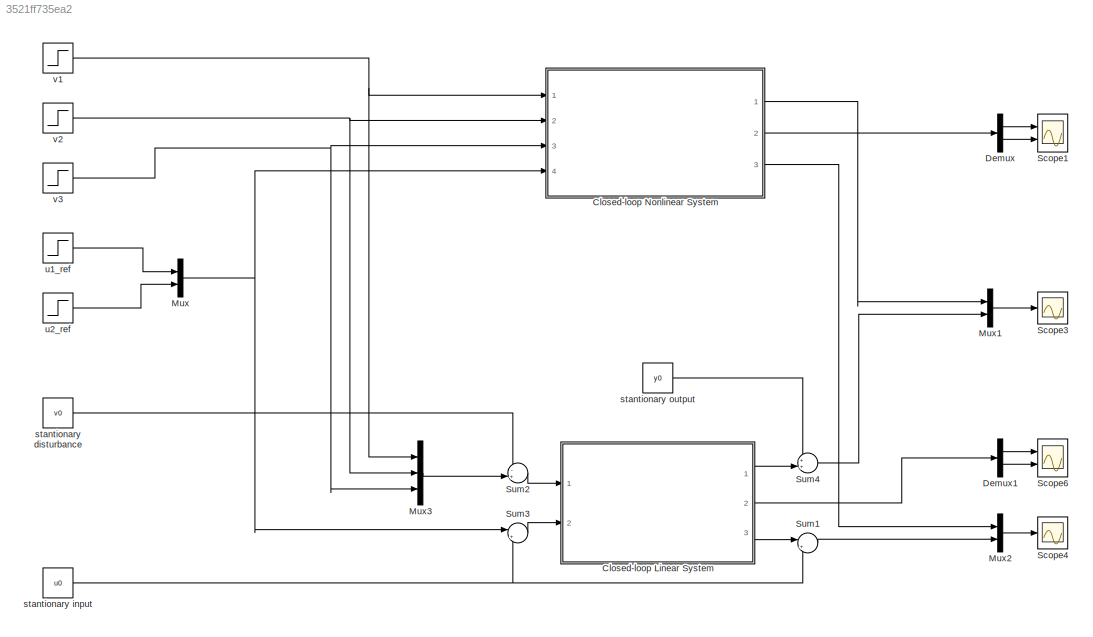
MODEL slx_3521ff735ea2
KIND model
CONFIG AbsTol = auto
CONFIG EnableMultiTasking = on
CONFIG FixedStep = STEP_SIZE
CONFIG MaxStep = auto
CONFIG MinStep = auto
CONFIG RelTol = 1e-3
CONFIG SampleTimeConstraint = Unconstrained
CONFIG Solver = ode4
CONFIG SolverName = ode4
CONFIG StartTime = 0.0
CONFIG StopTime = SIM_TIME
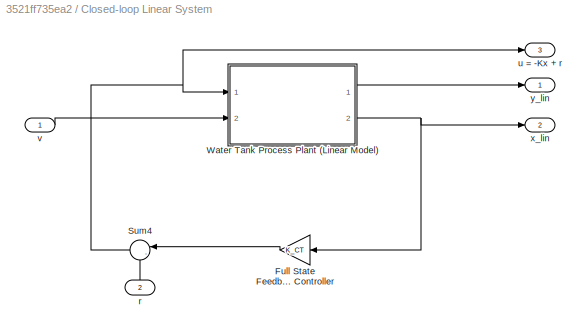
BLOCK [SubSystem] Closed-loop Linear System
  Ports = [2, 3]
  RequestExecContextInheritance = off
  Variant = off
BLOCK [Gain] Closed-loop Linear System/Full State Feedback Controller
  Gain = K_CT
  Multiplication = Matrix(K*u) (u vector)
  OutDataTypeStr = Inherit: Inherit via internal rule
  ParamDataTypeStr = Inherit: Inherit via internal rule
  SaturateOnIntegerOverflow = off
BLOCK [Sum] Closed-loop Linear System/Sum4
  IconShape = round
  InputSameDT = off
  Inputs = |-+
  OutDataTypeStr = Inherit: Inherit via internal rule
  Ports = [2, 1]
  SaturateOnIntegerOverflow = off
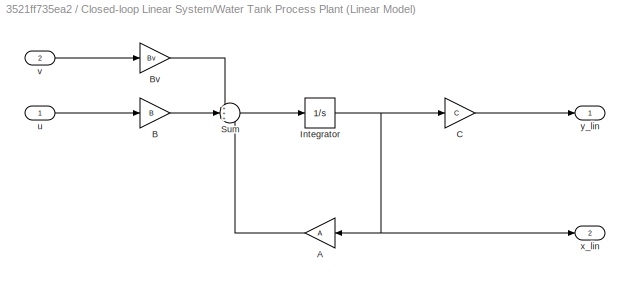
BLOCK [SubSystem] Closed-loop Linear System/Water Tank Process Plant (Linear Model)
  Ports = [2, 2]
  RequestExecContextInheritance = off
  Variant = off
BLOCK [Gain] Closed-loop Linear System/Water Tank Process Plant (Linear Model)/A
  Gain = A
  Multiplication = Matrix(K*u) (u vector)
  OutDataTypeStr = Inherit: Inherit via internal rule
  ParamDataTypeStr = Inherit: Inherit via internal rule
  SaturateOnIntegerOverflow = off
BLOCK [Gain] Closed-loop Linear System/Water Tank Process Plant (Linear Model)/B
  Gain = B
  Multiplication = Matrix(K*u) (u vector)
  OutDataTypeStr = Inherit: Inherit via internal rule
  ParamDataTypeStr = Inherit: Inherit via internal rule
  SaturateOnIntegerOverflow = off
BLOCK [Gain] Closed-loop Linear System/Water Tank Process Plant (Linear Model)/Bv
  Gain = Bv
  Multiplication = Matrix(K*u) (u vector)
  OutDataTypeStr = Inherit: Inherit via internal rule
  ParamDataTypeStr = Inherit: Inherit via internal rule
  SaturateOnIntegerOverflow = off
BLOCK [Gain] Closed-loop Linear System/Water Tank Process Plant (Linear Model)/C
  Gain = C
  Multiplication = Matrix(K*u) (u vector)
  OutDataTypeStr = Inherit: Inherit via internal rule
  ParamDataTypeStr = Inherit: Inherit via internal rule
  SaturateOnIntegerOverflow = off
BLOCK [Integrator] Closed-loop Linear System/Water Tank Process Plant (Linear Model)/Integrator
  InitialCondition = x0_lin
  Ports = [1, 1]
BLOCK [Sum] Closed-loop Linear System/Water Tank Process Plant (Linear Model)/Sum
  IconShape = round
  InputSameDT = off
  Inputs = +++
  OutDataTypeStr = Inherit: Inherit via internal rule
  Ports = [3, 1]
  SaturateOnIntegerOverflow = off
BLOCK [Inport] Closed-loop Linear System/Water Tank Process Plant (Linear Model)/u
  IconDisplay = Port number
BLOCK [Inport] Closed-loop Linear System/Water Tank Process Plant (Linear Model)/v
  IconDisplay = Port number
  Port = 2
BLOCK [Outport] Closed-loop Linear System/Water Tank Process Plant (Linear Model)/x_lin
  IconDisplay = Port number
  Port = 2
BLOCK [Outport] Closed-loop Linear System/Water Tank Process Plant (Linear Model)/y_lin
  IconDisplay = Port number
BLOCK [Inport] Closed-loop Linear System/r
  IconDisplay = Port number
  Port = 2
BLOCK [Outport] Closed-loop Linear System/u = -Kx + r
  IconDisplay = Port number
  Port = 3
BLOCK [Inport] Closed-loop Linear System/v
  IconDisplay = Port number
BLOCK [Outport] Closed-loop Linear System/x_lin
  IconDisplay = Port number
  Port = 2
BLOCK [Outport] Closed-loop Linear System/y_lin
  IconDisplay = Port number
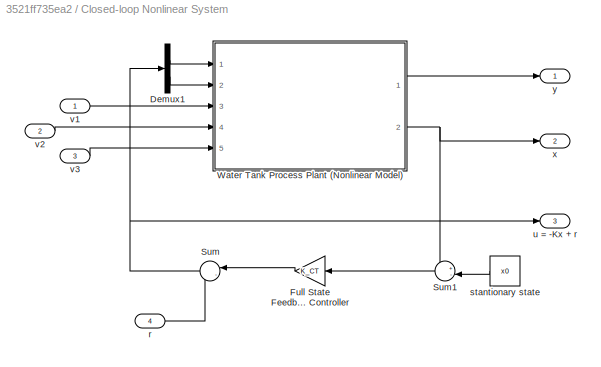
BLOCK [SubSystem] Closed-loop Nonlinear System
  Ports = [4, 3]
  RequestExecContextInheritance = off
  Variant = off
BLOCK [Demux] Closed-loop Nonlinear System/Demux1
  DisplayOption = bar
  Outputs = 2
  Ports = [1, 2]
BLOCK [Gain] Closed-loop Nonlinear System/Full State Feedback Controller
  Gain = K_CT
  Multiplication = Matrix(K*u) (u vector)
  OutDataTypeStr = Inherit: Inherit via internal rule
  ParamDataTypeStr = Inherit: Inherit via internal rule
  SaturateOnIntegerOverflow = off
BLOCK [Sum] Closed-loop Nonlinear System/Sum
  IconShape = round
  InputSameDT = off
  Inputs = |-+
  OutDataTypeStr = Inherit: Inherit via internal rule
  Ports = [2, 1]
  SaturateOnIntegerOverflow = off
BLOCK [Sum] Closed-loop Nonlinear System/Sum1
  IconShape = round
  InputSameDT = off
  Inputs = +-|
  OutDataTypeStr = Inherit: Inherit via internal rule
  Ports = [2, 1]
  SaturateOnIntegerOverflow = off
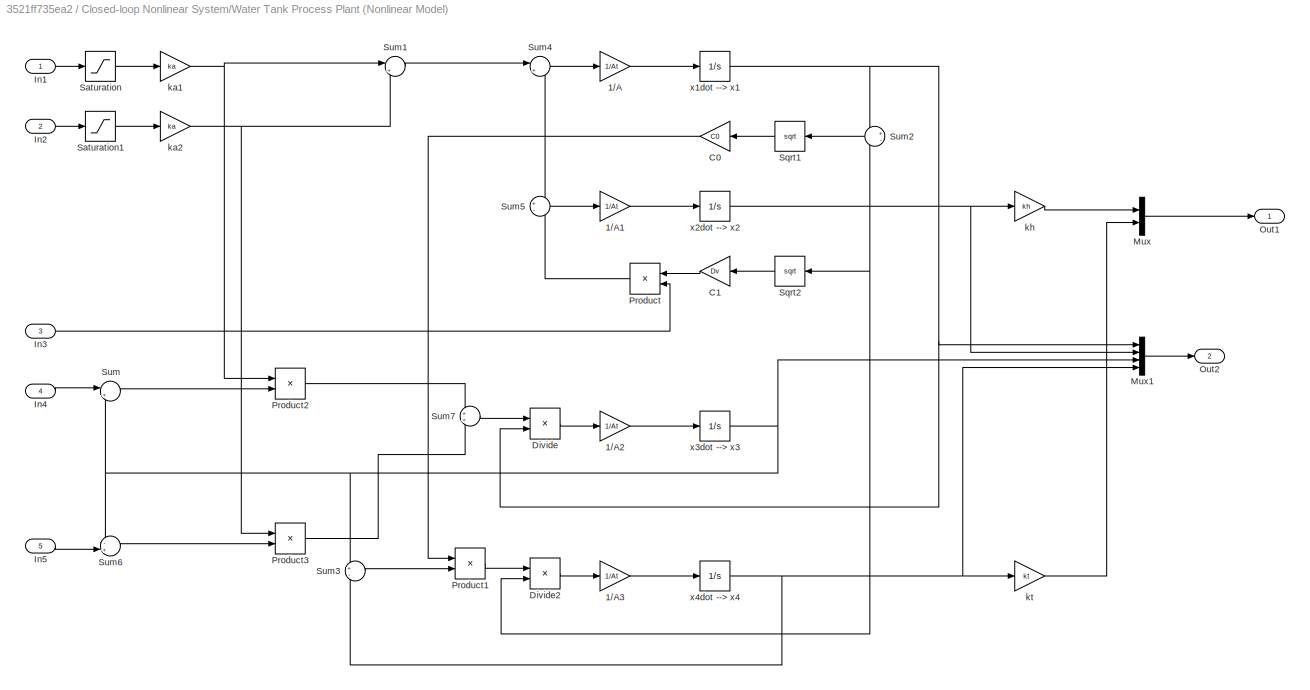
BLOCK [SubSystem] Closed-loop Nonlinear System/Water Tank Process Plant (Nonlinear Model)
  Ports = [5, 2]
  RequestExecContextInheritance = off
  Variant = off
BLOCK [Gain] Closed-loop Nonlinear System/Water Tank Process Plant (Nonlinear Model)/1//A
  Gain = 1/At
  OutDataTypeStr = Inherit: Inherit via internal rule
  ParamDataTypeStr = Inherit: Inherit via internal rule
  SaturateOnIntegerOverflow = off
BLOCK [Gain] Closed-loop Nonlinear System/Water Tank Process Plant (Nonlinear Model)/1//A1
  Gain = 1/At
  OutDataTypeStr = Inherit: Inherit via internal rule
  ParamDataTypeStr = Inherit: Inherit via internal rule
  SaturateOnIntegerOverflow = off
BLOCK [Gain] Closed-loop Nonlinear System/Water Tank Process Plant (Nonlinear Model)/1//A2
  Gain = 1/At
  OutDataTypeStr = Inherit: Inherit via internal rule
  ParamDataTypeStr = Inherit: Inherit via internal rule
  SaturateOnIntegerOverflow = off
BLOCK [Gain] Closed-loop Nonlinear System/Water Tank Process Plant (Nonlinear Model)/1//A3
  Gain = 1/At
  OutDataTypeStr = Inherit: Inherit via internal rule
  ParamDataTypeStr = Inherit: Inherit via internal rule
  SaturateOnIntegerOverflow = off
BLOCK [Gain] Closed-loop Nonlinear System/Water Tank Process Plant (Nonlinear Model)/C0
  Gain = C0
  OutDataTypeStr = Inherit: Inherit via internal rule
  ParamDataTypeStr = Inherit: Inherit via internal rule
  SaturateOnIntegerOverflow = off
BLOCK [Gain] Closed-loop Nonlinear System/Water Tank Process Plant (Nonlinear Model)/C1
  Gain = Dv
  OutDataTypeStr = Inherit: Inherit via internal rule
  ParamDataTypeStr = Inherit: Inherit via internal rule
  SaturateOnIntegerOverflow = off
BLOCK [Product] Closed-loop Nonlinear System/Water Tank Process Plant (Nonlinear Model)/Divide
  InputSameDT = off
  Inputs = */
  OutDataTypeStr = Inherit: Inherit via internal rule
  Ports = [2, 1]
  RndMeth = Floor
  SaturateOnIntegerOverflow = off
BLOCK [Product] Closed-loop Nonlinear System/Water Tank Process Plant (Nonlinear Model)/Divide2
  InputSameDT = off
  Inputs = */
  OutDataTypeStr = Inherit: Inherit via internal rule
  Ports = [2, 1]
  RndMeth = Floor
  SaturateOnIntegerOverflow = off
BLOCK [Inport] Closed-loop Nonlinear System/Water Tank Process Plant (Nonlinear Model)/In1
  IconDisplay = Port number
BLOCK [Inport] Closed-loop Nonlinear System/Water Tank Process Plant (Nonlinear Model)/In2
  IconDisplay = Port number
  Port = 2
BLOCK [Inport] Closed-loop Nonlinear System/Water Tank Process Plant (Nonlinear Model)/In3
  IconDisplay = Port number
  Port = 3
BLOCK [Inport] Closed-loop Nonlinear System/Water Tank Process Plant (Nonlinear Model)/In4
  IconDisplay = Port number
  Port = 4
BLOCK [Inport] Closed-loop Nonlinear System/Water Tank Process Plant (Nonlinear Model)/In5
  IconDisplay = Port number
  Port = 5
BLOCK [Mux] Closed-loop Nonlinear System/Water Tank Process Plant (Nonlinear Model)/Mux
  DisplayOption = bar
  Inputs = 2
  Ports = [2, 1]
BLOCK [Mux] Closed-loop Nonlinear System/Water Tank Process Plant (Nonlinear Model)/Mux1
  DisplayOption = bar
  Ports = [4, 1]
BLOCK [Outport] Closed-loop Nonlinear System/Water Tank Process Plant (Nonlinear Model)/Out1
  IconDisplay = Port number
BLOCK [Outport] Closed-loop Nonlinear System/Water Tank Process Plant (Nonlinear Model)/Out2
  IconDisplay = Port number
  Port = 2
BLOCK [Product] Closed-loop Nonlinear System/Water Tank Process Plant (Nonlinear Model)/Product
  InputSameDT = off
  OutDataTypeStr = Inherit: Inherit via internal rule
  Ports = [2, 1]
  RndMeth = Floor
  SaturateOnIntegerOverflow = off
BLOCK [Product] Closed-loop Nonlinear System/Water Tank Process Plant (Nonlinear Model)/Product1
  InputSameDT = off
  OutDataTypeStr = Inherit: Inherit via internal rule
  Ports = [2, 1]
  RndMeth = Floor
  SaturateOnIntegerOverflow = off
BLOCK [Product] Closed-loop Nonlinear System/Water Tank Process Plant (Nonlinear Model)/Product2
  InputSameDT = off
  OutDataTypeStr = Inherit: Inherit via internal rule
  Ports = [2, 1]
  RndMeth = Floor
  SaturateOnIntegerOverflow = off
BLOCK [Product] Closed-loop Nonlinear System/Water Tank Process Plant (Nonlinear Model)/Product3
  InputSameDT = off
  OutDataTypeStr = Inherit: Inherit via internal rule
  Ports = [2, 1]
  RndMeth = Floor
  SaturateOnIntegerOverflow = off
BLOCK [Saturate] Closed-loop Nonlinear System/Water Tank Process Plant (Nonlinear Model)/Saturation
  InputPortMap = u0
  LowerLimit = 0
  Ports = [1, 1]
  UpperLimit = 10
BLOCK [Saturate] Closed-loop Nonlinear System/Water Tank Process Plant (Nonlinear Model)/Saturation1
  InputPortMap = u0
  LowerLimit = 0
  Ports = [1, 1]
  UpperLimit = 10
BLOCK [Sqrt] Closed-loop Nonlinear System/Water Tank Process Plant (Nonlinear Model)/Sqrt1
BLOCK [Sqrt] Closed-loop Nonlinear System/Water Tank Process Plant (Nonlinear Model)/Sqrt2
BLOCK [Sum] Closed-loop Nonlinear System/Water Tank Process Plant (Nonlinear Model)/Sum
  IconShape = round
  InputSameDT = off
  Inputs = |+-
  OutDataTypeStr = Inherit: Inherit via internal rule
  Ports = [2, 1]
  SaturateOnIntegerOverflow = off
BLOCK [Sum] Closed-loop Nonlinear System/Water Tank Process Plant (Nonlinear Model)/Sum1
  IconShape = round
  InputSameDT = off
  Inputs = |++
  OutDataTypeStr = Inherit: Inherit via internal rule
  Ports = [2, 1]
  SaturateOnIntegerOverflow = off
BLOCK [Sum] Closed-loop Nonlinear System/Water Tank Process Plant (Nonlinear Model)/Sum2
  IconShape = round
  InputSameDT = off
  Inputs = +-
  OutDataTypeStr = Inherit: Inherit via internal rule
  Ports = [2, 1]
  SaturateOnIntegerOverflow = off
BLOCK [Sum] Closed-loop Nonlinear System/Water Tank Process Plant (Nonlinear Model)/Sum3
  IconShape = round
  InputSameDT = off
  Inputs = +-
  OutDataTypeStr = Inherit: Inherit via internal rule
  Ports = [2, 1]
  SaturateOnIntegerOverflow = off
BLOCK [Sum] Closed-loop Nonlinear System/Water Tank Process Plant (Nonlinear Model)/Sum4
  IconShape = round
  InputSameDT = off
  Inputs = |+-
  OutDataTypeStr = Inherit: Inherit via internal rule
  Ports = [2, 1]
  SaturateOnIntegerOverflow = off
BLOCK [Sum] Closed-loop Nonlinear System/Water Tank Process Plant (Nonlinear Model)/Sum5
  IconShape = round
  InputSameDT = off
  Inputs = +-
  OutDataTypeStr = Inherit: Inherit via internal rule
  Ports = [2, 1]
  SaturateOnIntegerOverflow = off
BLOCK [Sum] Closed-loop Nonlinear System/Water Tank Process Plant (Nonlinear Model)/Sum6
  IconShape = round
  InputSameDT = off
  Inputs = -+|
  OutDataTypeStr = Inherit: Inherit via internal rule
  Ports = [2, 1]
  SaturateOnIntegerOverflow = off
BLOCK [Sum] Closed-loop Nonlinear System/Water Tank Process Plant (Nonlinear Model)/Sum7
  IconShape = round
  InputSameDT = off
  OutDataTypeStr = Inherit: Inherit via internal rule
  Ports = [2, 1]
  SaturateOnIntegerOverflow = off
BLOCK [Gain] Closed-loop Nonlinear System/Water Tank Process Plant (Nonlinear Model)/ka1
  Gain = ka
  OutDataTypeStr = Inherit: Inherit via internal rule
  ParamDataTypeStr = Inherit: Inherit via internal rule
  SaturateOnIntegerOverflow = off
BLOCK [Gain] Closed-loop Nonlinear System/Water Tank Process Plant (Nonlinear Model)/ka2
  Gain = ka
  OutDataTypeStr = Inherit: Inherit via internal rule
  ParamDataTypeStr = Inherit: Inherit via internal rule
  SaturateOnIntegerOverflow = off
BLOCK [Gain] Closed-loop Nonlinear System/Water Tank Process Plant (Nonlinear Model)/kh
  Gain = kh
  OutDataTypeStr = Inherit: Inherit via internal rule
  ParamDataTypeStr = Inherit: Inherit via internal rule
  SaturateOnIntegerOverflow = off
BLOCK [Gain] Closed-loop Nonlinear System/Water Tank Process Plant (Nonlinear Model)/kt
  Gain = kt
  OutDataTypeStr = Inherit: Inherit via internal rule
  ParamDataTypeStr = Inherit: Inherit via internal rule
  SaturateOnIntegerOverflow = off
BLOCK [Integrator] Closed-loop Nonlinear System/Water Tank Process Plant (Nonlinear Model)/x1dot --> x1
  InitialCondition = x0(1)
  LimitOutput = on
  LowerSaturationLimit = 0
  Ports = [1, 1]
BLOCK [Integrator] Closed-loop Nonlinear System/Water Tank Process Plant (Nonlinear Model)/x2dot --> x2
  InitialCondition = x0(2)
  LimitOutput = on
  LowerSaturationLimit = 0
  Ports = [1, 1]
BLOCK [Integrator] Closed-loop Nonlinear System/Water Tank Process Plant (Nonlinear Model)/x3dot --> x3
  InitialCondition = x0(3)
  Ports = [1, 1]
BLOCK [Integrator] Closed-loop Nonlinear System/Water Tank Process Plant (Nonlinear Model)/x4dot --> x4
  InitialCondition = x0(4)
  Ports = [1, 1]
BLOCK [Inport] Closed-loop Nonlinear System/r
  IconDisplay = Port number
  Port = 4
BLOCK [Constant] Closed-loop Nonlinear System/stantionary state
  Value = x0
BLOCK [Outport] Closed-loop Nonlinear System/u = -Kx + r
  IconDisplay = Port number
  Port = 3
BLOCK [Inport] Closed-loop Nonlinear System/v1
  IconDisplay = Port number
BLOCK [Inport] Closed-loop Nonlinear System/v2
  IconDisplay = Port number
  Port = 2
BLOCK [Inport] Closed-loop Nonlinear System/v3
  IconDisplay = Port number
  Port = 3
BLOCK [Outport] Closed-loop Nonlinear System/x
  IconDisplay = Port number
  Port = 2
BLOCK [Outport] Closed-loop Nonlinear System/y
  IconDisplay = Port number
BLOCK [Demux] Demux
  DisplayOption = bar
  Outputs = 2
  Ports = [1, 2]
BLOCK [Demux] Demux1
  DisplayOption = bar
  Outputs = 2
  Ports = [1, 2]
BLOCK [Mux] Mux
  DisplayOption = bar
  Inputs = 2
  Ports = [2, 1]
BLOCK [Mux] Mux1
  DisplayOption = bar
  Inputs = 2
  Ports = [2, 1]
BLOCK [Mux] Mux2
  DisplayOption = bar
  Inputs = 2
  Ports = [2, 1]
BLOCK [Mux] Mux3
  DisplayOption = bar
  Inputs = 3
  Ports = [3, 1]
BLOCK [Scope] Scope1
  NumInputPorts = 2
  Ports = [2]
  ScopeSpecificationString = Simulink.scopes.TimeScopeBlockCfg('CurrentConfiguration', extmgr.ConfigurationSet(extmgr.Configuration('Core','General UI',true),extmgr.Configuration('Core','Source UI',true),extmgr.Configuration('Sources','WiredSimulink',true,'DataLoggingVariableName','ScopeData1','DataLoggingSaveFormat','StructureWithTime','DataLoggingDecimation','1','DataLoggingDecimateData',true),extmgr.Configuration('Visuals'...<+2353ch>
BLOCK [Scope] Scope3
  NumInputPorts = 1
  Ports = [1]
  ScopeSpecificationString = Simulink.scopes.TimeScopeBlockCfg('CurrentConfiguration', extmgr.ConfigurationSet(extmgr.Configuration('Core','General UI',true,'FigureColor',[0.501960784313725 0.501960784313725 0.501960784313725]),extmgr.Configuration('Core','Source UI',true),extmgr.Configuration('Sources','WiredSimulink',true,'DataLoggingVariableName','ScopeData3','DataLoggingSaveFormat','StructureWithTime','DataLoggingDecimati...<+2757ch>
BLOCK [Scope] Scope4
  NumInputPorts = 1
  Ports = [1]
  ScopeSpecificationString = Simulink.scopes.TimeScopeBlockCfg('CurrentConfiguration', extmgr.ConfigurationSet(extmgr.Configuration('Core','General UI',true,'FigureColor',[0.501960784313725 0.501960784313725 0.501960784313725]),extmgr.Configuration('Core','Source UI',true),extmgr.Configuration('Sources','WiredSimulink',true,'DataLoggingVariableName','ScopeData4','DataLoggingSaveFormat','StructureWithTime','DataLoggingDecimati...<+2688ch>
BLOCK [Scope] Scope6
  NumInputPorts = 2
  Ports = [2]
  ScopeSpecificationString = C++SS(StrPVP('Location','[1, 48, 1601, 859]'),StrPVP('Open','off'),StrPVP('ZoomMode','xonly'),MxPVP('AxesTitles',53,'struct(''axes1'',''%<SignalLabel>'',''axes2'',''%<SignalLabel>'')'),MxPVP('ScopeGraphics',56,'struct(''FigureColor'',''[0.5 0.5 0.5]'',''AxesColor'',''[0 0 0]'',''AxesTickColor'',''[1 1 1]'',''LineColors'',''[1 1 0;1 0 1;0 1 1;1 0 0;0 1 0;0 0 1]'',''LineStyles'',''-|-|-|-|-|-'',''Li...<+370ch>
BLOCK [Sum] Sum1
  IconShape = round
  InputSameDT = off
  Inputs = |++
  OutDataTypeStr = Inherit: Inherit via internal rule
  Ports = [2, 1]
  SaturateOnIntegerOverflow = off
BLOCK [Sum] Sum2
  IconShape = round
  InputSameDT = off
  Inputs = -+|
  OutDataTypeStr = Inherit: Inherit via internal rule
  Ports = [2, 1]
  SaturateOnIntegerOverflow = off
BLOCK [Sum] Sum3
  IconShape = round
  InputSameDT = off
  Inputs = |+-
  OutDataTypeStr = Inherit: Inherit via internal rule
  Ports = [2, 1]
  SaturateOnIntegerOverflow = off
BLOCK [Sum] Sum4
  IconShape = round
  InputSameDT = off
  Inputs = ++|
  OutDataTypeStr = Inherit: Inherit via internal rule
  Ports = [2, 1]
  SaturateOnIntegerOverflow = off
BLOCK [Constant] stantionary disturbance
  Value = v0
BLOCK [Constant] stantionary input
  Value = u0
BLOCK [Constant] stantionary output
  Value = y0
BLOCK [Step] u1_ref
  After = r1(1)+u0(1)
  Before = r0(1)+u0(1)
  SampleTime = 0
  Time = Tref1
BLOCK [Step] u2_ref
  After = r1(2)+u0(2)
  Before = r0(2)+u0(1)
  SampleTime = 0
  Time = Tref2
BLOCK [Step] v1
  After = Av1
  Before = Av0
  SampleTime = 0
  Time = Tv+1000
BLOCK [Step] v2
  After = Tw1
  Before = Tw0
  SampleTime = 0
  Time = Tw+1000
BLOCK [Step] v3
  After = Tc1
  Before = Tc0
  SampleTime = 0
  Time = Tc+1000
LINE Closed-loop Linear System/Full State Feedback Controller:1 -> Closed-loop Linear System/Sum4:1
NET Closed-loop Linear System/Sum4:1 -> Closed-loop Linear System/Water Tank Process Plant (Linear Model):1, Closed-loop Linear System/u = -Kx + r:1
LINE Closed-loop Linear System/Water Tank Process Plant (Linear Model)/A:1 -> Closed-loop Linear System/Water Tank Process Plant (Linear Model)/Sum:3
LINE Closed-loop Linear System/Water Tank Process Plant (Linear Model)/B:1 -> Closed-loop Linear System/Water Tank Process Plant (Linear Model)/Sum:2
LINE Closed-loop Linear System/Water Tank Process Plant (Linear Model)/Bv:1 -> Closed-loop Linear System/Water Tank Process Plant (Linear Model)/Sum:1
LINE Closed-loop Linear System/Water Tank Process Plant (Linear Model)/C:1 -> Closed-loop Linear System/Water Tank Process Plant (Linear Model)/y_lin:1
NET Closed-loop Linear System/Water Tank Process Plant (Linear Model)/Integrator:1 -> Closed-loop Linear System/Water Tank Process Plant (Linear Model)/A:1, Closed-loop Linear System/Water Tank Process Plant (Linear Model)/C:1, Closed-loop Linear System/Water Tank Process Plant (Linear Model)/x_lin:1
LINE Closed-loop Linear System/Water Tank Process Plant (Linear Model)/Sum:1 -> Closed-loop Linear System/Water Tank Process Plant (Linear Model)/Integrator:1
LINE Closed-loop Linear System/Water Tank Process Plant (Linear Model)/u:1 -> Closed-loop Linear System/Water Tank Process Plant (Linear Model)/B:1
LINE Closed-loop Linear System/Water Tank Process Plant (Linear Model)/v:1 -> Closed-loop Linear System/Water Tank Process Plant (Linear Model)/Bv:1
LINE Closed-loop Linear System/Water Tank Process Plant (Linear Model):1 -> Closed-loop Linear System/y_lin:1
NET Closed-loop Linear System/Water Tank Process Plant (Linear Model):2 -> Closed-loop Linear System/Full State Feedback Controller:1, Closed-loop Linear System/x_lin:1
LINE Closed-loop Linear System/r:1 -> Closed-loop Linear System/Sum4:2
LINE Closed-loop Linear System/v:1 -> Closed-loop Linear System/Water Tank Process Plant (Linear Model):2
LINE Closed-loop Linear System:1 -> Sum4:2
LINE Closed-loop Linear System:2 -> Demux1:1
LINE Closed-loop Linear System:3 -> Sum1:1
LINE Closed-loop Nonlinear System/Demux1:1 -> Closed-loop Nonlinear System/Water Tank Process Plant (Nonlinear Model):1
LINE Closed-loop Nonlinear System/Demux1:2 -> Closed-loop Nonlinear System/Water Tank Process Plant (Nonlinear Model):2
LINE Closed-loop Nonlinear System/Full State Feedback Controller:1 -> Closed-loop Nonlinear System/Sum:1
LINE Closed-loop Nonlinear System/Sum1:1 -> Closed-loop Nonlinear System/Full State Feedback Controller:1
NET Closed-loop Nonlinear System/Sum:1 -> Closed-loop Nonlinear System/Demux1:1, Closed-loop Nonlinear System/u = -Kx + r:1
LINE Closed-loop Nonlinear System/Water Tank Process Plant (Nonlinear Model)/1//A1:1 -> Closed-loop Nonlinear System/Water Tank Process Plant (Nonlinear Model)/x2dot --> x2:1
LINE Closed-loop Nonlinear System/Water Tank Process Plant (Nonlinear Model)/1//A2:1 -> Closed-loop Nonlinear System/Water Tank Process Plant (Nonlinear Model)/x3dot --> x3:1
LINE Closed-loop Nonlinear System/Water Tank Process Plant (Nonlinear Model)/1//A3:1 -> Closed-loop Nonlinear System/Water Tank Process Plant (Nonlinear Model)/x4dot --> x4:1
LINE Closed-loop Nonlinear System/Water Tank Process Plant (Nonlinear Model)/1//A:1 -> Closed-loop Nonlinear System/Water Tank Process Plant (Nonlinear Model)/x1dot --> x1:1
NET Closed-loop Nonlinear System/Water Tank Process Plant (Nonlinear Model)/C0:1 -> Closed-loop Nonlinear System/Water Tank Process Plant (Nonlinear Model)/Product1:1, Closed-loop Nonlinear System/Water Tank Process Plant (Nonlinear Model)/Sum4:2, Closed-loop Nonlinear System/Water Tank Process Plant (Nonlinear Model)/Sum5:1
LINE Closed-loop Nonlinear System/Water Tank Process Plant (Nonlinear Model)/C1:1 -> Closed-loop Nonlinear System/Water Tank Process Plant (Nonlinear Model)/Product:1
LINE Closed-loop Nonlinear System/Water Tank Process Plant (Nonlinear Model)/Divide2:1 -> Closed-loop Nonlinear System/Water Tank Process Plant (Nonlinear Model)/1//A3:1
LINE Closed-loop Nonlinear System/Water Tank Process Plant (Nonlinear Model)/Divide:1 -> Closed-loop Nonlinear System/Water Tank Process Plant (Nonlinear Model)/1//A2:1
LINE Closed-loop Nonlinear System/Water Tank Process Plant (Nonlinear Model)/In1:1 -> Closed-loop Nonlinear System/Water Tank Process Plant (Nonlinear Model)/Saturation:1
LINE Closed-loop Nonlinear System/Water Tank Process Plant (Nonlinear Model)/In2:1 -> Closed-loop Nonlinear System/Water Tank Process Plant (Nonlinear Model)/Saturation1:1
LINE Closed-loop Nonlinear System/Water Tank Process Plant (Nonlinear Model)/In3:1 -> Closed-loop Nonlinear System/Water Tank Process Plant (Nonlinear Model)/Product:2
LINE Closed-loop Nonlinear System/Water Tank Process Plant (Nonlinear Model)/In4:1 -> Closed-loop Nonlinear System/Water Tank Process Plant (Nonlinear Model)/Sum:1
LINE Closed-loop Nonlinear System/Water Tank Process Plant (Nonlinear Model)/In5:1 -> Closed-loop Nonlinear System/Water Tank Process Plant (Nonlinear Model)/Sum6:2
LINE Closed-loop Nonlinear System/Water Tank Process Plant (Nonlinear Model)/Mux1:1 -> Closed-loop Nonlinear System/Water Tank Process Plant (Nonlinear Model)/Out2:1
LINE Closed-loop Nonlinear System/Water Tank Process Plant (Nonlinear Model)/Mux:1 -> Closed-loop Nonlinear System/Water Tank Process Plant (Nonlinear Model)/Out1:1
LINE Closed-loop Nonlinear System/Water Tank Process Plant (Nonlinear Model)/Product1:1 -> Closed-loop Nonlinear System/Water Tank Process Plant (Nonlinear Model)/Divide2:1
LINE Closed-loop Nonlinear System/Water Tank Process Plant (Nonlinear Model)/Product2:1 -> Closed-loop Nonlinear System/Water Tank Process Plant (Nonlinear Model)/Sum7:1
LINE Closed-loop Nonlinear System/Water Tank Process Plant (Nonlinear Model)/Product3:1 -> Closed-loop Nonlinear System/Water Tank Process Plant (Nonlinear Model)/Sum7:2
LINE Closed-loop Nonlinear System/Water Tank Process Plant (Nonlinear Model)/Product:1 -> Closed-loop Nonlinear System/Water Tank Process Plant (Nonlinear Model)/Sum5:2
LINE Closed-loop Nonlinear System/Water Tank Process Plant (Nonlinear Model)/Saturation1:1 -> Closed-loop Nonlinear System/Water Tank Process Plant (Nonlinear Model)/ka2:1
LINE Closed-loop Nonlinear System/Water Tank Process Plant (Nonlinear Model)/Saturation:1 -> Closed-loop Nonlinear System/Water Tank Process Plant (Nonlinear Model)/ka1:1
LINE Closed-loop Nonlinear System/Water Tank Process Plant (Nonlinear Model)/Sqrt1:1 -> Closed-loop Nonlinear System/Water Tank Process Plant (Nonlinear Model)/C0:1
LINE Closed-loop Nonlinear System/Water Tank Process Plant (Nonlinear Model)/Sqrt2:1 -> Closed-loop Nonlinear System/Water Tank Process Plant (Nonlinear Model)/C1:1
LINE Closed-loop Nonlinear System/Water Tank Process Plant (Nonlinear Model)/Sum1:1 -> Closed-loop Nonlinear System/Water Tank Process Plant (Nonlinear Model)/Sum4:1
LINE Closed-loop Nonlinear System/Water Tank Process Plant (Nonlinear Model)/Sum2:1 -> Closed-loop Nonlinear System/Water Tank Process Plant (Nonlinear Model)/Sqrt1:1
LINE Closed-loop Nonlinear System/Water Tank Process Plant (Nonlinear Model)/Sum3:1 -> Closed-loop Nonlinear System/Water Tank Process Plant (Nonlinear Model)/Product1:2
LINE Closed-loop Nonlinear System/Water Tank Process Plant (Nonlinear Model)/Sum4:1 -> Closed-loop Nonlinear System/Water Tank Process Plant (Nonlinear Model)/1//A:1
LINE Closed-loop Nonlinear System/Water Tank Process Plant (Nonlinear Model)/Sum5:1 -> Closed-loop Nonlinear System/Water Tank Process Plant (Nonlinear Model)/1//A1:1
LINE Closed-loop Nonlinear System/Water Tank Process Plant (Nonlinear Model)/Sum6:1 -> Closed-loop Nonlinear System/Water Tank Process Plant (Nonlinear Model)/Product3:2
LINE Closed-loop Nonlinear System/Water Tank Process Plant (Nonlinear Model)/Sum7:1 -> Closed-loop Nonlinear System/Water Tank Process Plant (Nonlinear Model)/Divide:1
LINE Closed-loop Nonlinear System/Water Tank Process Plant (Nonlinear Model)/Sum:1 -> Closed-loop Nonlinear System/Water Tank Process Plant (Nonlinear Model)/Product2:2
NET Closed-loop Nonlinear System/Water Tank Process Plant (Nonlinear Model)/ka1:1 -> Closed-loop Nonlinear System/Water Tank Process Plant (Nonlinear Model)/Product2:1, Closed-loop Nonlinear System/Water Tank Process Plant (Nonlinear Model)/Sum1:1
NET Closed-loop Nonlinear System/Water Tank Process Plant (Nonlinear Model)/ka2:1 -> Closed-loop Nonlinear System/Water Tank Process Plant (Nonlinear Model)/Product3:1, Closed-loop Nonlinear System/Water Tank Process Plant (Nonlinear Model)/Sum1:2
LINE Closed-loop Nonlinear System/Water Tank Process Plant (Nonlinear Model)/kh:1 -> Closed-loop Nonlinear System/Water Tank Process Plant (Nonlinear Model)/Mux:1
LINE Closed-loop Nonlinear System/Water Tank Process Plant (Nonlinear Model)/kt:1 -> Closed-loop Nonlinear System/Water Tank Process Plant (Nonlinear Model)/Mux:2
NET Closed-loop Nonlinear System/Water Tank Process Plant (Nonlinear Model)/x1dot --> x1:1 -> Closed-loop Nonlinear System/Water Tank Process Plant (Nonlinear Model)/Divide:2, Closed-loop Nonlinear System/Water Tank Process Plant (Nonlinear Model)/Mux1:1, Closed-loop Nonlinear System/Water Tank Process Plant (Nonlinear Model)/Sum2:1
NET Closed-loop Nonlinear System/Water Tank Process Plant (Nonlinear Model)/x2dot --> x2:1 -> Closed-loop Nonlinear System/Water Tank Process Plant (Nonlinear Model)/Divide2:2, Closed-loop Nonlinear System/Water Tank Process Plant (Nonlinear Model)/Mux1:2, Closed-loop Nonlinear System/Water Tank Process Plant (Nonlinear Model)/Sqrt2:1, Closed-loop Nonlinear System/Water Tank Process Plant (Nonlinear Model)/Sum2:2, Closed-loop Nonlinear System/Water Tank Process Plant (Nonlinear Model)/kh:1
NET Closed-loop Nonlinear System/Water Tank Process Plant (Nonlinear Model)/x3dot --> x3:1 -> Closed-loop Nonlinear System/Water Tank Process Plant (Nonlinear Model)/Mux1:3, Closed-loop Nonlinear System/Water Tank Process Plant (Nonlinear Model)/Sum3:1, Closed-loop Nonlinear System/Water Tank Process Plant (Nonlinear Model)/Sum6:1, Closed-loop Nonlinear System/Water Tank Process Plant (Nonlinear Model)/Sum:2
NET Closed-loop Nonlinear System/Water Tank Process Plant (Nonlinear Model)/x4dot --> x4:1 -> Closed-loop Nonlinear System/Water Tank Process Plant (Nonlinear Model)/Mux1:4, Closed-loop Nonlinear System/Water Tank Process Plant (Nonlinear Model)/Sum3:2, Closed-loop Nonlinear System/Water Tank Process Plant (Nonlinear Model)/kt:1
LINE Closed-loop Nonlinear System/Water Tank Process Plant (Nonlinear Model):1 -> Closed-loop Nonlinear System/y:1
NET Closed-loop Nonlinear System/Water Tank Process Plant (Nonlinear Model):2 -> Closed-loop Nonlinear System/Sum1:1, Closed-loop Nonlinear System/x:1
LINE Closed-loop Nonlinear System/r:1 -> Closed-loop Nonlinear System/Sum:2
LINE Closed-loop Nonlinear System/stantionary state:1 -> Closed-loop Nonlinear System/Sum1:2
LINE Closed-loop Nonlinear System/v1:1 -> Closed-loop Nonlinear System/Water Tank Process Plant (Nonlinear Model):3
LINE Closed-loop Nonlinear System/v2:1 -> Closed-loop Nonlinear System/Water Tank Process Plant (Nonlinear Model):4
LINE Closed-loop Nonlinear System/v3:1 -> Closed-loop Nonlinear System/Water Tank Process Plant (Nonlinear Model):5
LINE Closed-loop Nonlinear System:1 -> Mux1:1
LINE Closed-loop Nonlinear System:2 -> Demux:1
LINE Closed-loop Nonlinear System:3 -> Mux2:1
LINE Demux1:1 -> Scope6:1
LINE Demux1:2 -> Scope6:2
LINE Demux:1 -> Scope1:1
LINE Demux:2 -> Scope1:2
LINE Mux1:1 -> Scope3:1
LINE Mux2:1 -> Scope4:1
LINE Mux3:1 -> Sum2:2
NET Mux:1 -> Closed-loop Nonlinear System:4, Sum3:1
LINE Sum1:1 -> Mux2:2
LINE Sum2:1 -> Closed-loop Linear System:1
LINE Sum3:1 -> Closed-loop Linear System:2
LINE Sum4:1 -> Mux1:2
LINE stantionary disturbance:1 -> Sum2:1
NET stantionary input:1 -> Sum1:2, Sum3:2
LINE stantionary output:1 -> Sum4:1
LINE u1_ref:1 -> Mux:1
LINE u2_ref:1 -> Mux:2
NET v1:1 -> Closed-loop Nonlinear System:1, Mux3:1
NET v2:1 -> Closed-loop Nonlinear System:2, Mux3:2
NET v3:1 -> Closed-loop Nonlinear System:3, Mux3:3
note: NET lines group one-source signal fan-out (src -> all destinations, sorted); 1:1 wires keep LINE
